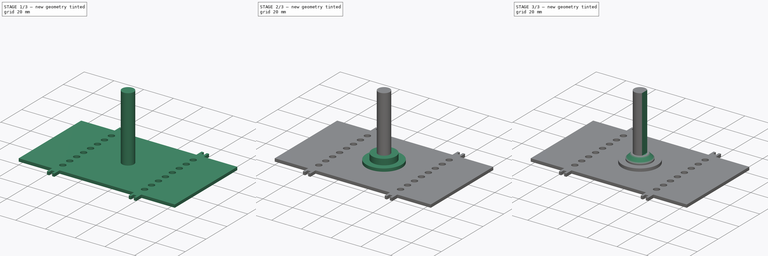
[diagram: build sequence overview — one tinted view per stage of 3, left to right]
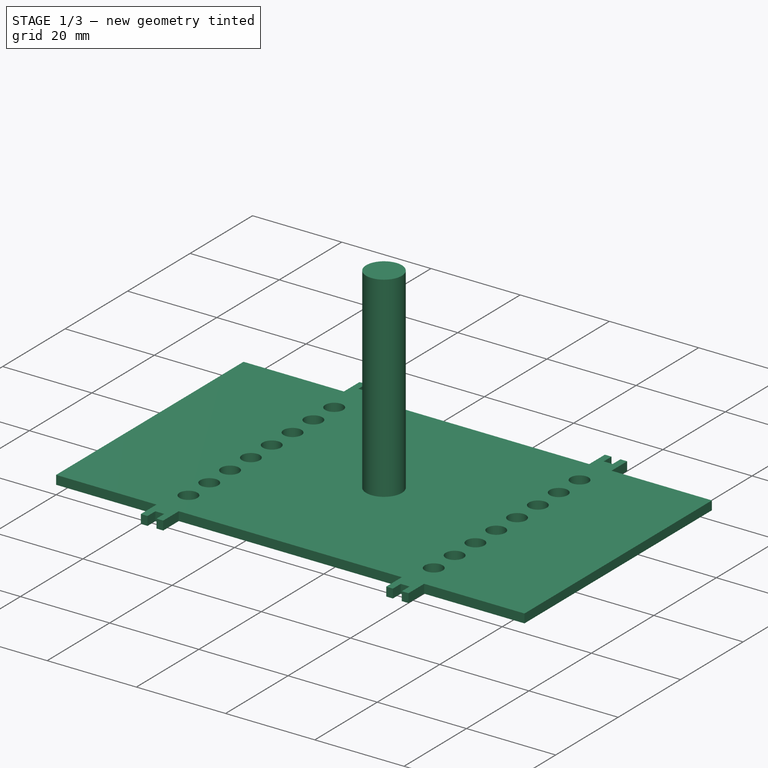
[diagram: stage 1 of 3 — iso view after this stage's code; geometry added in this stage tinted green]
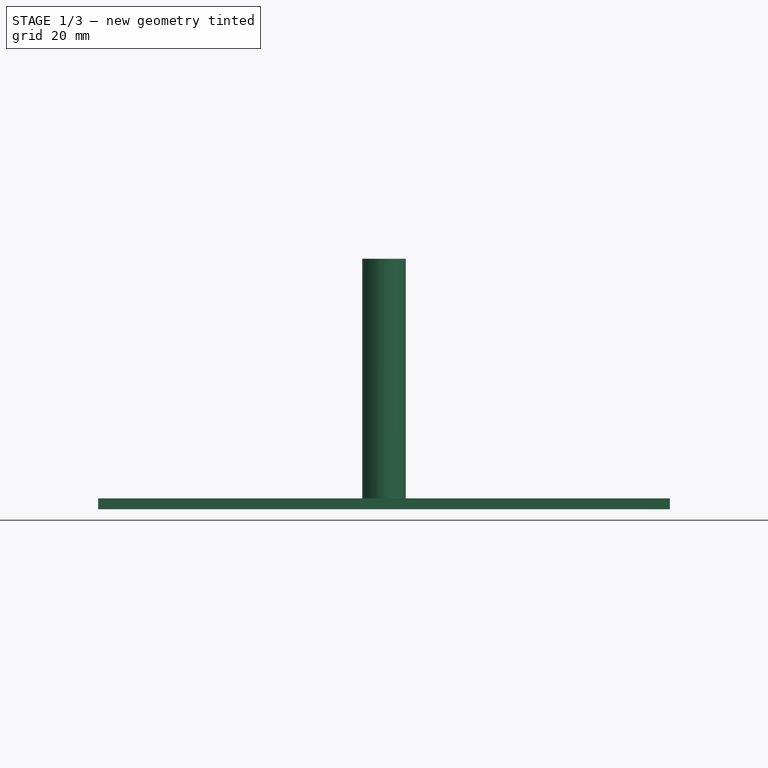
[diagram: stage 1 of 3 — front view after this stage's code; geometry added in this stage tinted green]
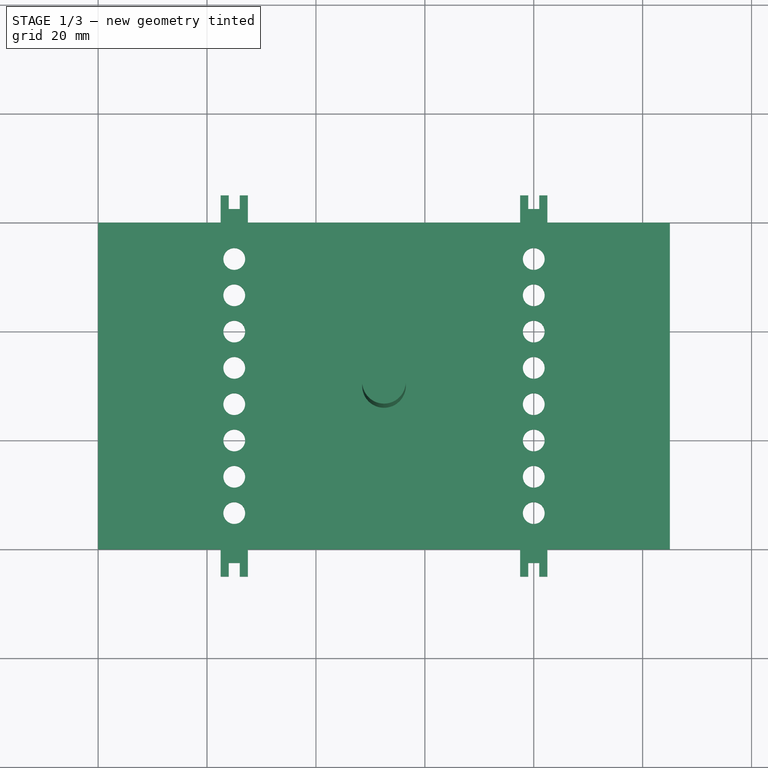
[diagram: stage 1 of 3 — top view after this stage's code; geometry added in this stage tinted green]
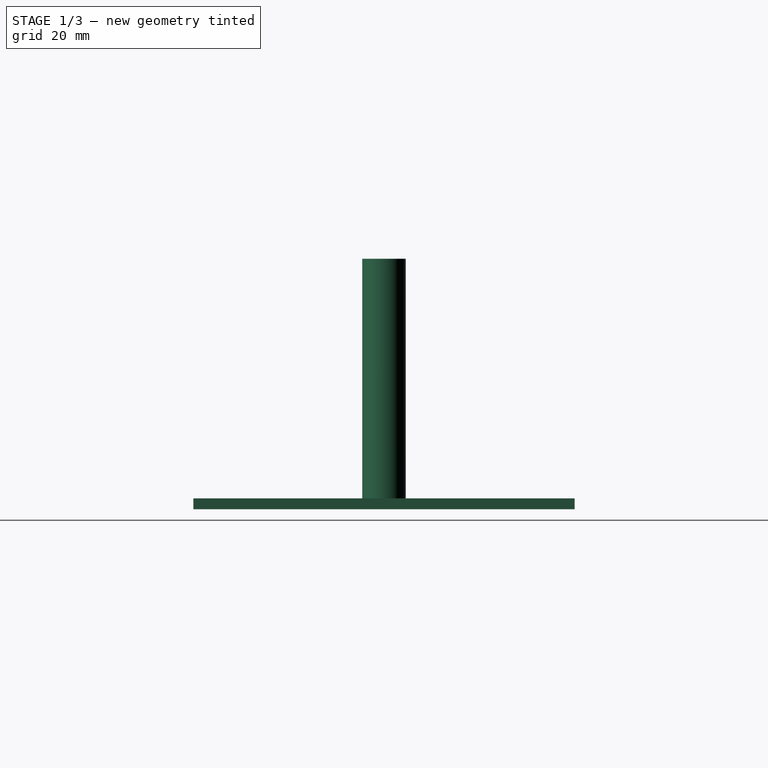
[diagram: stage 1 of 3 — right view after this stage's code; geometry added in this stage tinted green]
FCSTD DOCUMENT  (FreeCAD 0.18R16093 (Git))
Label: tray cover
License: All rights reserved
LicenseURL: http://en.wikipedia.org/wiki/All_rights_reserved
objects: Sketcher::SketchObject×5, PartDesign::Pad×4, PartDesign::Pocket×1, PartDesign::Chamfer×1, PartDesign::Body×1
note: 17 computed .brp shape members not serialized (recipe doc carries the construction recipe); baked Part::Feature solids carry a one-line shape summary decoded from their .brp

FEATURE [Sketcher::SketchObject] Sketch
  MapMode = 5
  Support = -> [XY_Plane]
  sketch-geometry (94):
    g0: LineSegment StartX=105 StartY=0 StartZ=0 EndX=105 EndY=60 EndZ=0
    g1: LineSegment StartX=0 StartY=60 StartZ=0 EndX=0 EndY=0 EndZ=0
    g2: LineSegment StartX=0 StartY=0 StartZ=0 EndX=22.5 EndY=0 EndZ=0
    g3: LineSegment StartX=22.5 StartY=0 StartZ=0 EndX=22.5 EndY=-5 EndZ=0
    g4: LineSegment [constr] StartX=22.5 StartY=-5 StartZ=0 EndX=27.5 EndY=-5 EndZ=0
    g5: LineSegment StartX=27.5 StartY=-5 StartZ=0 EndX=27.5 EndY=0 EndZ=0
    g6: LineSegment StartX=27.5 StartY=0 StartZ=0 EndX=77.5 EndY=0 EndZ=0
    g7: LineSegment StartX=77.5 StartY=0 StartZ=0 EndX=77.5 EndY=-5 EndZ=0
    g8: LineSegment StartX=82.5 StartY=-5 StartZ=0 EndX=82.5 EndY=0 EndZ=0
    g9: LineSegment StartX=82.5 StartY=0 StartZ=0 EndX=105 EndY=0 EndZ=0
    g10: LineSegment StartX=0 StartY=60 StartZ=0 EndX=22.5 EndY=60 EndZ=0
    g11: LineSegment StartX=22.5 StartY=60 StartZ=0 EndX=22.5 EndY=65 EndZ=0
    g12: LineSegment StartX=27.5 StartY=65 StartZ=0 EndX=27.5 EndY=60 EndZ=0
    g13: LineSegment StartX=27.5 StartY=60 StartZ=0 EndX=77.5 EndY=60 EndZ=0
    g14: LineSegment StartX=77.5 StartY=60 StartZ=0 EndX=77.5 EndY=65 EndZ=0
    g15: LineSegment StartX=82.5 StartY=65 StartZ=0 EndX=82.5 EndY=60 EndZ=0
    g16: LineSegment StartX=82.5 StartY=60 StartZ=0 EndX=105 EndY=60 EndZ=0
    g17: LineSegment [constr] StartX=22.5 StartY=60 StartZ=0 EndX=25 EndY=60 EndZ=0
    g18: LineSegment [constr] StartX=25 StartY=60 StartZ=0 EndX=27.5 EndY=60 EndZ=0
    g19: LineSegment [constr] StartX=77.5 StartY=60 StartZ=0 EndX=80 EndY=60 EndZ=0
    g20: LineSegment [constr] StartX=80 StartY=60 StartZ=0 EndX=82.5 EndY=60 EndZ=0
    g21: LineSegment [constr] StartX=22.5 StartY=0 StartZ=0 EndX=25 EndY=0 EndZ=0
    g22: LineSegment [constr] StartX=25 StartY=0 StartZ=0 EndX=27.5 EndY=0 EndZ=0
    g23: LineSegment [constr] StartX=77.5 StartY=0 StartZ=0 EndX=80 EndY=0 EndZ=0
    g24: LineSegment [constr] StartX=80 StartY=0 StartZ=0 EndX=82.5 EndY=0 EndZ=0
    g25: LineSegment [constr] StartX=80 StartY=0 StartZ=0 EndX=80 EndY=-2.5 EndZ=0
    g26: LineSegment [constr] StartX=80 StartY=-2.5 StartZ=0 EndX=80 EndY=-5 EndZ=0
    g27: LineSegment [constr] StartX=25 StartY=0 StartZ=0 EndX=25 EndY=-2.5 EndZ=0
    g28: LineSegment [constr] StartX=25 StartY=-2.5 StartZ=0 EndX=25 EndY=-5 EndZ=0
    g29: LineSegment [constr] StartX=25 StartY=0 StartZ=0 EndX=25 EndY=6.66667 EndZ=0
    g30: LineSegment [constr] StartX=25 StartY=6.66667 StartZ=0 EndX=25 EndY=13.3333 EndZ=0
    g31: LineSegment [constr] StartX=25 StartY=13.3333 StartZ=0 EndX=25 EndY=20 EndZ=0
    g32: LineSegment [constr] StartX=25 StartY=20 StartZ=0 EndX=25 EndY=26.6667 EndZ=0
    g33: LineSegment [constr] StartX=25 StartY=26.6667 StartZ=0 EndX=25 EndY=33.3333 EndZ=0
    g34: LineSegment [constr] StartX=25 StartY=33.3333 StartZ=0 EndX=25 EndY=40 EndZ=0
    g35: LineSegment [constr] StartX=25 StartY=40 StartZ=0 EndX=25 EndY=46.6667 EndZ=0
    g36: Circle CenterX=25 CenterY=46.6667 CenterZ=0 NormalX=0 NormalY=0 NormalZ=1 AngleXU=0 Radius=2
    g37: Circle CenterX=25 CenterY=40 CenterZ=0 NormalX=0 NormalY=0 NormalZ=1 AngleXU=0 Radius=2
    g38: Circle CenterX=25 CenterY=33.3333 CenterZ=0 NormalX=0 NormalY=0 NormalZ=1 AngleXU=0 Radius=2
    g39: Circle CenterX=25 CenterY=26.6667 CenterZ=0 NormalX=0 NormalY=0 NormalZ=1 AngleXU=0 Radius=2
    g40: Circle CenterX=25 CenterY=20 CenterZ=0 NormalX=0 NormalY=0 NormalZ=1 AngleXU=0 Radius=2
    g41: Circle CenterX=25 CenterY=13.3333 CenterZ=0 NormalX=0 NormalY=0 NormalZ=1 AngleXU=0 Radius=2
    g42: Circle CenterX=25 CenterY=6.66667 CenterZ=0 NormalX=0 NormalY=0 NormalZ=1 AngleXU=0 Radius=2
    g43: LineSegment StartX=22.5 StartY=-5 StartZ=0 EndX=24 EndY=-5 EndZ=0
    g44: LineSegment StartX=24 StartY=-5 StartZ=0 EndX=24 EndY=-2.5 EndZ=0
    g45: LineSegment StartX=24 StartY=-2.5 StartZ=0 EndX=25 EndY=-2.5 EndZ=0
    g46: LineSegment StartX=25 StartY=-2.5 StartZ=0 EndX=26 EndY=-2.5 EndZ=0
    g47: LineSegment StartX=26 StartY=-2.5 StartZ=0 EndX=26 EndY=-5 EndZ=0
    g48: LineSegment StartX=26 StartY=-5 StartZ=0 EndX=27.5 EndY=-5 EndZ=0
    g49: LineSegment StartX=77.5 StartY=-5 StartZ=0 EndX=79 EndY=-5 EndZ=0
    g50: LineSegment StartX=79 StartY=-5 StartZ=0 EndX=79 EndY=-2.5 EndZ=0
    g51: LineSegment StartX=79 StartY=-2.5 StartZ=0 EndX=80 EndY=-2.5 EndZ=0
    g52: LineSegment StartX=80 StartY=-2.5 StartZ=0 EndX=81 EndY=-2.5 EndZ=0
    g53: LineSegment StartX=81 StartY=-2.5 StartZ=0 EndX=81 EndY=-5 EndZ=0
    g54: LineSegment StartX=81 StartY=-5 StartZ=0 EndX=82.5 EndY=-5 EndZ=0
    g55: LineSegment [constr] StartX=80 StartY=0 StartZ=0 EndX=80 EndY=6.66667 EndZ=0
    g56: LineSegment [constr] StartX=80 StartY=6.66667 StartZ=0 EndX=80 EndY=13.3333 EndZ=0
    g57: LineSegment [constr] StartX=80 StartY=13.3333 StartZ=0 EndX=80 EndY=20 EndZ=0
    g58: LineSegment [constr] StartX=80 StartY=20 StartZ=0 EndX=80 EndY=26.6667 EndZ=0
    g59: LineSegment [constr] StartX=80 StartY=26.6667 StartZ=0 EndX=80 EndY=33.3333 EndZ=0
    g60: Circle CenterX=80 CenterY=6.66667 CenterZ=0 NormalX=0 NormalY=0 NormalZ=1 AngleXU=0 Radius=2
    g61: Circle CenterX=80 CenterY=13.3333 CenterZ=0 NormalX=0 NormalY=0 NormalZ=1 AngleXU=0 Radius=2
    g62: Circle CenterX=80 CenterY=20 CenterZ=0 NormalX=0 NormalY=0 NormalZ=1 AngleXU=0 Radius=2
    g63: Circle CenterX=80 CenterY=26.6667 CenterZ=0 NormalX=0 NormalY=0 NormalZ=1 AngleXU=0 Radius=2
    g64: Circle CenterX=80 CenterY=33.3333 CenterZ=0 NormalX=0 NormalY=0 NormalZ=1 AngleXU=0 Radius=2
    g65: Circle CenterX=80 CenterY=46.6667 CenterZ=0 NormalX=0 NormalY=0 NormalZ=1 AngleXU=0 Radius=2
    g66: LineSegment [constr] StartX=80 StartY=33.3333 StartZ=0 EndX=80 EndY=40 EndZ=0
    g67: LineSegment [constr] StartX=80 StartY=40 StartZ=0 EndX=80 EndY=46.6667 EndZ=0
    g68: Circle CenterX=80 CenterY=40 CenterZ=0 NormalX=0 NormalY=0 NormalZ=1 AngleXU=0 Radius=2
    g69: LineSegment [constr] StartX=25 StartY=46.6667 StartZ=0 EndX=25 EndY=53.3333 EndZ=0
    g70: LineSegment [constr] StartX=25 StartY=53.3333 StartZ=0 EndX=25 EndY=60 EndZ=0
    g71: LineSegment [constr] StartX=80 StartY=46.6667 StartZ=0 EndX=80 EndY=53.3333 EndZ=0
    g72: LineSegment [constr] StartX=80 StartY=53.3333 StartZ=0 EndX=80 EndY=60 EndZ=0
    g73: Circle CenterX=25 CenterY=53.3333 CenterZ=0 NormalX=0 NormalY=0 NormalZ=1 AngleXU=0 Radius=2
    g74: Circle CenterX=80 CenterY=53.3333 CenterZ=0 NormalX=0 NormalY=0 NormalZ=1 AngleXU=0 Radius=2
    g75: LineSegment [constr] StartX=80 StartY=60 StartZ=0 EndX=80 EndY=62.5 EndZ=0
    g76: LineSegment [constr] StartX=80 StartY=62.5 StartZ=0 EndX=80 EndY=65 EndZ=0
    g77: LineSegment [constr] StartX=77.5 StartY=65 StartZ=0 EndX=82.5 EndY=65 EndZ=0
    g78: LineSegment [constr] StartX=77.5 StartY=-5 StartZ=0 EndX=82.5 EndY=-5 EndZ=0
    g79: LineSegment StartX=77.5 StartY=65 StartZ=0 EndX=79 EndY=65 EndZ=0
    g80: LineSegment StartX=79 StartY=65 StartZ=0 EndX=79 EndY=62.5 EndZ=0
    g81: LineSegment StartX=79 StartY=62.5 StartZ=0 EndX=80 EndY=62.5 EndZ=0
    g82: LineSegment StartX=80 StartY=62.5 StartZ=0 EndX=81 EndY=62.5 EndZ=0
    g83: LineSegment StartX=81 StartY=62.5 StartZ=0 EndX=81 EndY=65 EndZ=0
    g84: LineSegment StartX=81 StartY=65 StartZ=0 EndX=82.5 EndY=65 EndZ=0
    g85: LineSegment StartX=22.5 StartY=65 StartZ=0 EndX=24 EndY=65 EndZ=0
    g86: LineSegment StartX=24 StartY=65 StartZ=0 EndX=24 EndY=62.5 EndZ=0
    g87: LineSegment StartX=24 StartY=62.5 StartZ=0 EndX=25 EndY=62.5 EndZ=0
    g88: LineSegment StartX=25 StartY=62.5 StartZ=0 EndX=26 EndY=62.5 EndZ=0
    g89: LineSegment StartX=26 StartY=62.5 StartZ=0 EndX=26 EndY=65 EndZ=0
    g90: LineSegment StartX=26 StartY=65 StartZ=0 EndX=27.5 EndY=65 EndZ=0
    g91: LineSegment [constr] StartX=25 StartY=60 StartZ=0 EndX=25 EndY=62.5 EndZ=0
    g92: LineSegment [constr] StartX=25 StartY=62.5 StartZ=0 EndX=25 EndY=65 EndZ=0
    g93: LineSegment [constr] StartX=22.5 StartY=65 StartZ=0 EndX=27.5 EndY=65 EndZ=0
  constraints (251):
    c: Vertical(g0)
    c: Vertical(g1)
    c: Coincident(g1,g2)
    c: PointOnObject(g2,g-1)
    c: Coincident(g2,g3)
    c: Vertical(g3)
    c: Coincident(g3,g4)
    c: Horizontal(g4)
    c: Coincident(g4,g5)
    c: PointOnObject(g5,g-1)
    c: Vertical(g5)
    c: Coincident(g5,g6)
    c: PointOnObject(g6,g-1)
    c: Coincident(g6,g7)
    c: Vertical(g7)
    c: PointOnObject(g8,g-1)
    c: Vertical(g8)
    c: Coincident(g8,g9)
    c: Coincident(g9,g0)
    c: Horizontal(g9)
    c: Coincident(g1,g10)
    c: Horizontal(g10)
    c: Coincident(g10,g11)
    c: Vertical(g11)
    c: Vertical(g12)
    c: Coincident(g12,g13)
    c: Horizontal(g13)
    c: Coincident(g13,g14)
    c: Vertical(g14)
    c: Vertical(g15)
    c: Coincident(g15,g16)
    c: Coincident(g16,g0)
    c: Horizontal(g16)
    c: Equal(g14,g11)
    c: Equal(g11,g3)
    c: Equal(g3,g7)
    c: Equal(g13,g6)
    c: Equal(g9,g2)
    c: Equal(g16,g10)
    c: Coincident(g10,g17)
    c: Horizontal(g17)
    c: Coincident(g17,g18)
    c: Coincident(g18,g12)
    c: Horizontal(g18)
    c: Coincident(g13,g19)
    c: Horizontal(g19)
    c: Coincident(g19,g20)
    c: Coincident(g20,g15)
    c: Horizontal(g20)
    c: Coincident(g2,g21)
    c: Horizontal(g21)
    c: Coincident(g21,g22)
    c: Coincident(g22,g5)
    c: Coincident(g6,g23)
    c: PointOnObject(g23,g-1)
    c: Coincident(g23,g24)
    c: Coincident(g24,g8)
    c: Equal(g19,g20)
    c: Equal(g17,g18)
    c: Equal(g21,g22)
    c: Equal(g23,g24)
    c: Coincident(g23,g25)
    c: Vertical(g25)
    c: Coincident(g25,g26)
    c: Vertical(g26)
    c: Coincident(g21,g27)
    c: Vertical(g27)
    c: Coincident(g27,g28)
    c: PointOnObject(g28,g4)
    c: Vertical(g28)
    c: Equal(g27,g28)
    c: Equal(g25,g26)
    c: DistanceX(g1,g0) = 105
    c: Coincident(g1,g-1)
    c: DistanceX(g14,g15) = 5
    c: DistanceY(g15,g15) = 5
    c: DistanceY(g0,g0) = 60
    c: DistanceX(g13,g13) = 50
    c: Coincident(g21,g29)
    c: Vertical(g29)
    c: Coincident(g29,g30)
    c: Vertical(g30)
    c: Coincident(g30,g31)
    c: Vertical(g31)
    c: Coincident(g31,g32)
    c: Vertical(g32)
    c: Coincident(g32,g33)
    c: Vertical(g33)
    c: Coincident(g33,g34)
    c: Vertical(g34)
    c: Coincident(g34,g35)
    c: Vertical(g35)
    c: Equal(g35,g34)
    c: Equal(g34,g33)
    c: Equal(g33,g32)
    c: Equal(g32,g31)
    c: Equal(g31,g30)
    c: Equal(g30,g29)
    c: Coincident(g36,g35)
    c: Coincident(g37,g34)
    c: Coincident(g38,g33)
    c: Coincident(g39,g32)
    c: Coincident(g40,g31)
    c: Coincident(g41,g30)
    c: Coincident(g42,g29)
    c: Equal(g42,g41)
    c: Equal(g41,g40)
    c: Equal(g40,g39)
    c: Equal(g39,g38)
    c: Equal(g38,g37)
    c: Equal(g37,g36)
    c: Radius(g36) = 2
    c: Coincident(g3,g43)
    c: PointOnObject(g43,g4)
    c: Coincident(g43,g44)
    c: Vertical(g44)
    c: Coincident(g44,g45)
    c: Coincident(g45,g27)
    c: Horizontal(g45)
    c: Coincident(g45,g46)
    c: Horizontal(g46)
    c: Coincident(g46,g47)
    c: PointOnObject(g47,g4)
    c: Vertical(g47)
    c: Coincident(g47,g48)
    c: Coincident(g48,g5)
    c: Equal(g45,g46)
    c: Coincident(g7,g49)
    c: Coincident(g49,g50)
    c: Vertical(g50)
    c: Coincident(g50,g51)
    c: Coincident(g51,g25)
    c: Coincident(g51,g52)
    c: Coincident(g52,g53)
    c: Vertical(g53)
    c: Coincident(g53,g54)
    c: Coincident(g54,g8)
    c: Horizontal(g52)
    c: Equal(g49,g48)
    c: Equal(g47,g50)
    c: Equal(g51,g52)
    c: Coincident(g23,g55)
    c: Vertical(g55)
    c: Coincident(g55,g56)
    c: Vertical(g56)
    c: Coincident(g56,g57)
    c: Vertical(g57)
    c: Coincident(g57,g58)
    c: Vertical(g58)
    c: Coincident(g58,g59)
    c: Vertical(g59)
    c: Coincident(g60,g55)
    c: Coincident(g61,g56)
    c: Coincident(g62,g57)
    c: Coincident(g63,g58)
    c: Coincident(g64,g59)
    c: Coincident(g59,g66)
    c: Vertical(g66)
    c: Coincident(g66,g67)
    c: Vertical(g67)
    c: Coincident(g68,g66)
    c: Equal(g58,g57)
    c: Equal(g60,g61)
    c: Equal(g61,g62)
    c: Equal(g62,g63)
    c: Equal(g63,g64)
    c: Equal(g64,g68)
    c: Equal(g68,g65)
    c: Equal(g65,g36)
    c: Equal(g55,g56)
    c: Equal(g56,g57)
    c: Equal(g58,g59)
    c: Equal(g59,g66)
    c: Equal(g66,g67)
    c: Coincident(g69,g36)
    c: Vertical(g69)
    c: Coincident(g69,g70)
    c: Coincident(g70,g17)
    c: Coincident(g71,g65)
    c: Vertical(g71)
    c: Coincident(g71,g72)
    c: Coincident(g72,g19)
    c: Equal(g67,g71)
    c: Equal(g71,g72)
    c: Coincident(g67,g65)
    c: Equal(g69,g35)
    c: Equal(g35,g70)
    c: Coincident(g73,g69)
    c: Coincident(g74,g71)
    c: Equal(g74,g65)
    c: Equal(g73,g36)
    c: Coincident(g19,g75)
    c: Vertical(g75)
    c: Coincident(g75,g76)
    c: Vertical(g76)
    c: Coincident(g77,g14)
    c: Coincident(g77,g15)
    c: PointOnObject(g76,g77)
    c: Equal(g76,g75)
    c: Coincident(g78,g7)
    c: Coincident(g78,g8)
    c: Horizontal(g78)
    c: PointOnObject(g26,g78)
    c: Coincident(g14,g79)
    c: Horizontal(g79)
    c: Coincident(g79,g80)
    c: Vertical(g80)
    c: Coincident(g80,g81)
    c: Horizontal(g81)
    c: Coincident(g81,g82)
    c: Horizontal(g82)
    c: Coincident(g82,g83)
    c: Vertical(g83)
    c: Coincident(g83,g84)
    c: Coincident(g84,g15)
    c: Horizontal(g84)
    c: Coincident(g81,g75)
    c: Equal(g81,g82)
    c: Equal(g79,g48)
    c: Coincident(g11,g85)
    c: Horizontal(g85)
    c: Coincident(g85,g86)
    c: Vertical(g86)
    c: Coincident(g86,g87)
    c: Horizontal(g87)
    c: Coincident(g87,g88)
    c: Horizontal(g88)
    c: Coincident(g88,g89)
    c: Vertical(g89)
    c: Coincident(g89,g90)
    c: Coincident(g90,g12)
    c: Horizontal(g90)
    c: Coincident(g17,g91)
    c: Coincident(g91,g87)
    c: Vertical(g91)
    c: Coincident(g91,g92)
    c: Vertical(g92)
    c: Coincident(g11,g93)
    c: Coincident(g93,g12)
    c: Horizontal(g93)
    c: PointOnObject(g92,g93)
    c: Equal(g92,g91)
    c: Equal(g87,g88)
    c: Equal(g90,g48)
    c: Horizontal(g77)
    c: Horizontal(g49)
    c: Equal(g4,g78)
    c: Equal(g78,g77)
    c: Equal(g77,g93)
    c: DistanceX(g84,g84) = 1.5
    c: Horizontal(g54)
FEATURE [PartDesign::Pad] Pad
  Length = 2
  Length2 = 100
  Profile = -> Sketch
  Type = 0
FEATURE [Sketcher::SketchObject] Sketch001
  MapMode = 5
  Support = -> [XY_Plane]
  expr: Constraints[2] = 60 / 2
  expr: Constraints[1] = 105 / 2
  sketch-geometry (1):
    g0: Circle CenterX=52.5 CenterY=30 CenterZ=0 NormalX=0 NormalY=0 NormalZ=1 AngleXU=0 Radius=4
  constraints (3):
    c: Radius(g0) = 4
    c: DistanceX(g-1,g0) = 52.5
    c: DistanceY(g-1,g0) = 30
FEATURE [PartDesign::Pad] Pad001
  BaseFeature = -> Pad
  Length = 46
  Length2 = 100
  Profile = -> Sketch001
  Type = 0
  expr: Length = 50 - 4
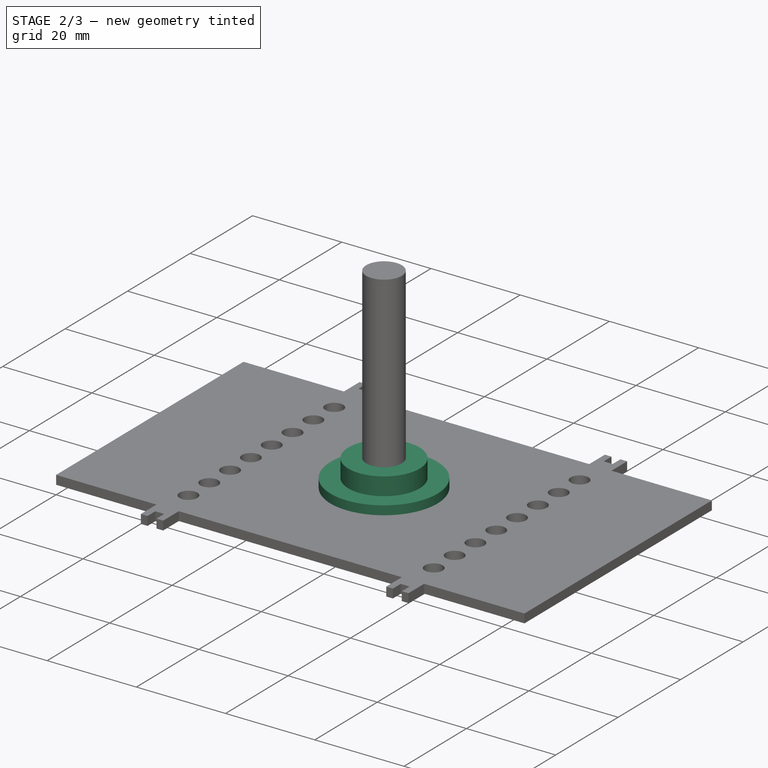
[diagram: stage 2 of 3 — iso view after this stage's code; geometry added in this stage tinted green]
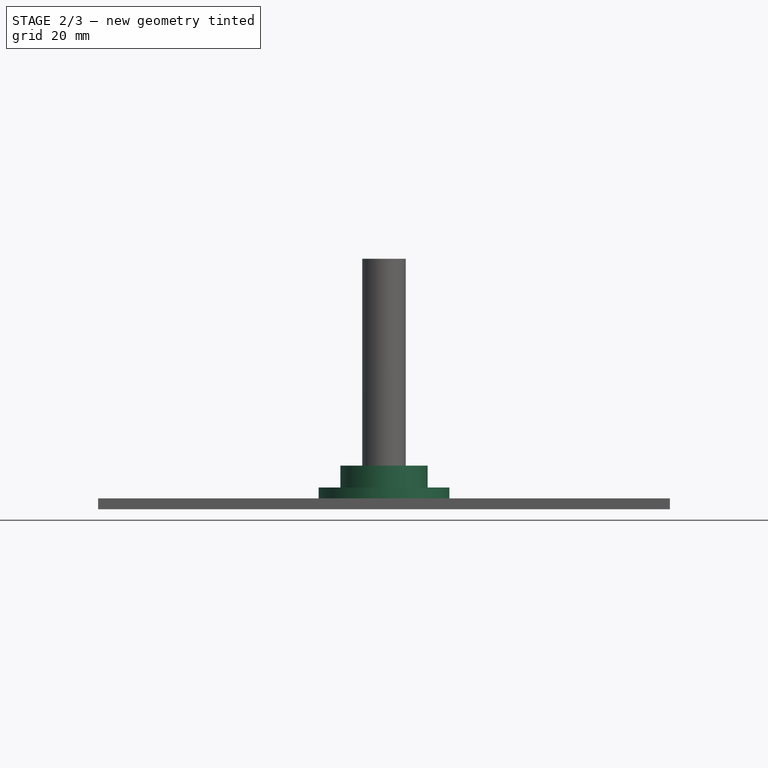
[diagram: stage 2 of 3 — front view after this stage's code; geometry added in this stage tinted green]
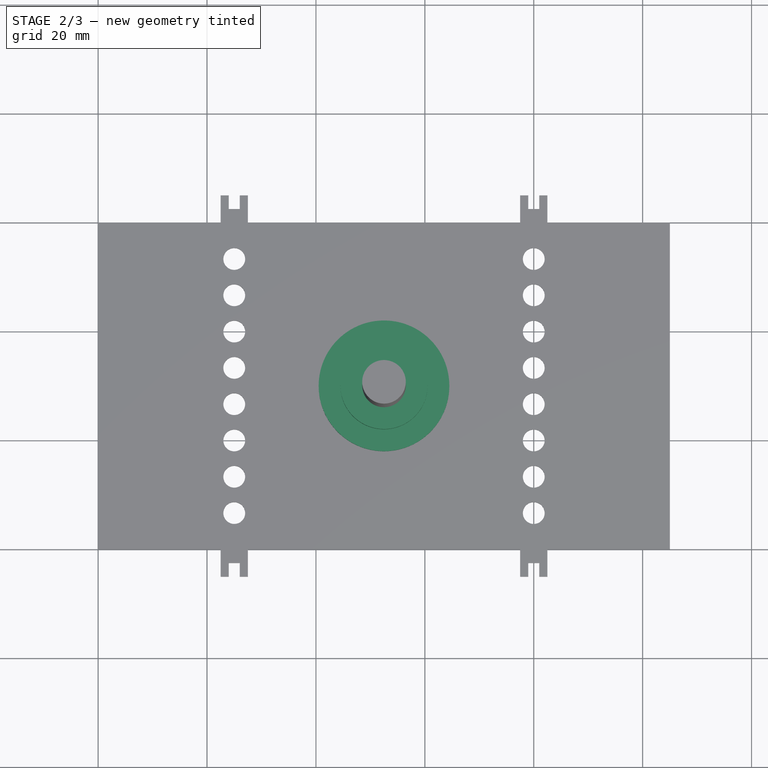
[diagram: stage 2 of 3 — top view after this stage's code; geometry added in this stage tinted green]
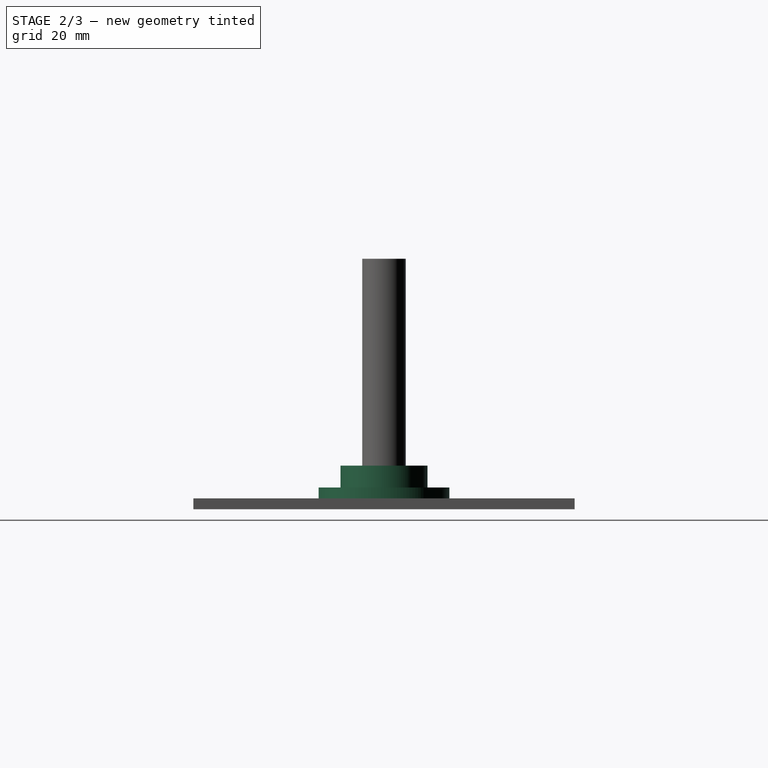
[diagram: stage 2 of 3 — right view after this stage's code; geometry added in this stage tinted green]
FEATURE [Sketcher::SketchObject] Sketch002
  MapMode = 5
  Support = -> [XY_Plane]
  sketch-geometry (1):
    g0: Circle CenterX=52.5 CenterY=30 CenterZ=0 NormalX=0 NormalY=0 NormalZ=1 AngleXU=0 Radius=8
  constraints (3):
    c: Radius(g0) = 8
    c: DistanceX(g-1,g0) = 52.5
    c: DistanceY(g-1,g0) = 30
FEATURE [PartDesign::Pad] Pad002
  BaseFeature = -> Pad001
  Length = 8
  Length2 = 100
  Profile = -> Sketch002
  Type = 0
FEATURE [Sketcher::SketchObject] Sketch003
  MapMode = 5
  Support = -> [XY_Plane]
  sketch-geometry (1):
    g0: Circle CenterX=52.5 CenterY=30 CenterZ=0 NormalX=0 NormalY=0 NormalZ=1 AngleXU=0 Radius=12
  constraints (3):
    c: Radius(g0) = 12
    c: DistanceX(g-1,g0) = 52.5
    c: DistanceY(g-1,g0) = 30
FEATURE [PartDesign::Pad] Pad003
  BaseFeature = -> Pad002
  Length = 4
  Length2 = 100
  Profile = -> Sketch003
  Type = 0
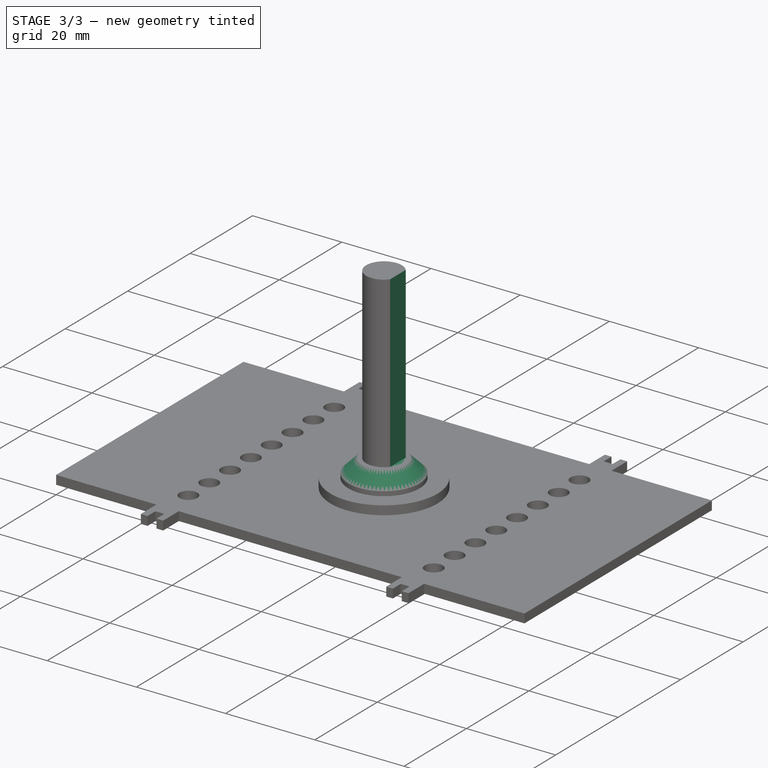
[diagram: stage 3 of 3 — iso view after this stage's code; geometry added in this stage tinted green]
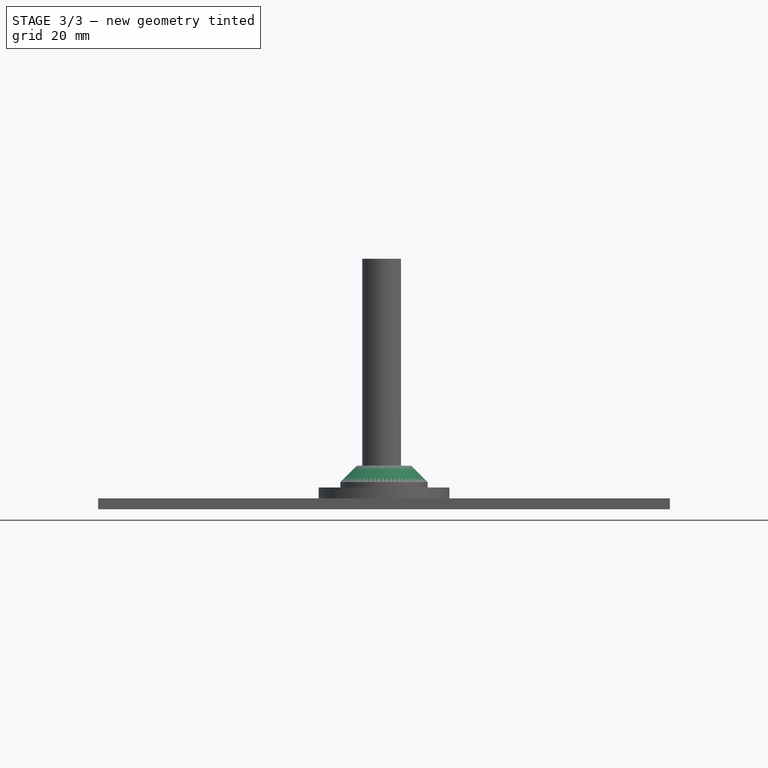
[diagram: stage 3 of 3 — front view after this stage's code; geometry added in this stage tinted green]
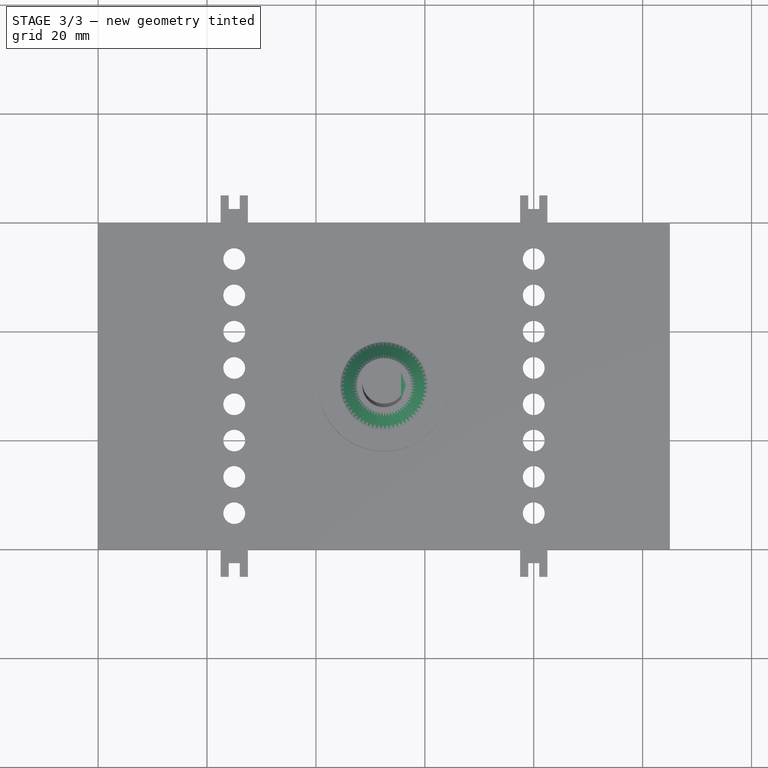
[diagram: stage 3 of 3 — top view after this stage's code; geometry added in this stage tinted green]
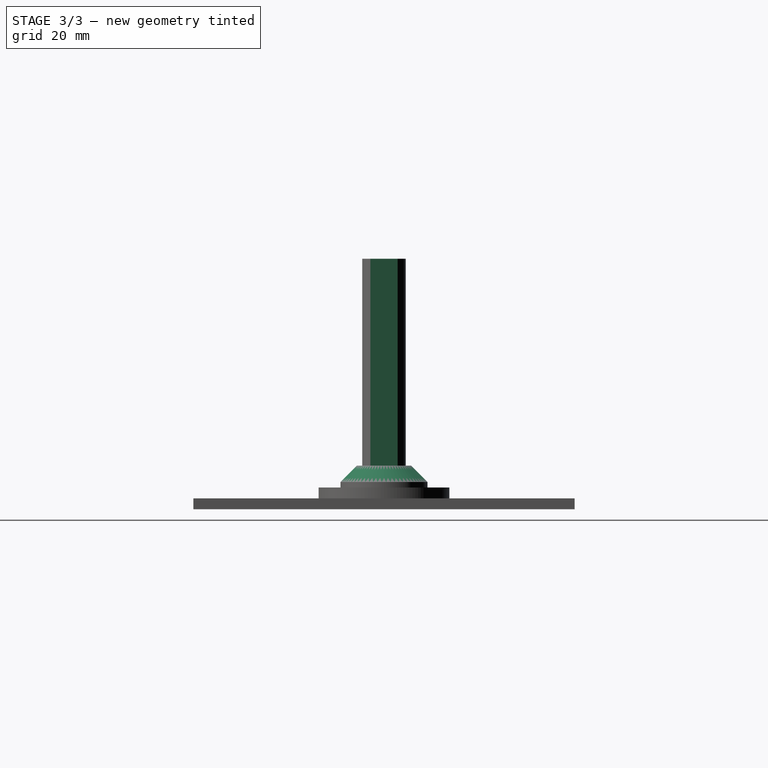
[diagram: stage 3 of 3 — right view after this stage's code; geometry added in this stage tinted green]
FEATURE [Sketcher::SketchObject] Sketch004
  MapMode = 5
  Placement = pos=(0,0,46) rot=(0,0,1;0rad)
  expr: Constraints[6] = 60 / 2
  expr: Constraints[5] = 105 / 2
  sketch-geometry (2):
    g0: LineSegment StartX=55.6225 StartY=32.5 StartZ=0 EndX=55.6225 EndY=27.5 EndZ=0
    g1: ArcOfCircle CenterX=52.5 CenterY=30 CenterZ=0 NormalX=0 NormalY=0 NormalZ=1 AngleXU=0 Radius=4 StartAngle=5.60805 EndAngle=6.95832
  constraints (7):
    c: Vertical(g0)
    c: DistanceY(g0,g0) = 5
    c: Coincident(g1,g0)
    c: Coincident(g1,g0)
    c: Radius(g1) = 4
    c: DistanceX(g-1,g1) = 52.5
    c: DistanceY(g-1,g1) = 30
FEATURE [PartDesign::Pocket] Pocket
  BaseFeature = -> Pad003
  Length = 0
  Length2 = 100
  Profile = -> Sketch004
  Type = 3
  UpToFace = -> Pad003 [Face65]
FEATURE [PartDesign::Chamfer] Chamfer
  Base = -> Pocket [Edge177]
  BaseFeature = -> Pocket
  Size = 3
FEATURE [PartDesign::Body] Body
  Group = -> [Sketch,Pad,Sketch001,Pad001,Sketch002,Pad002,Sketch003,Pad003,Sketch004,Pocket,Chamfer]
  Origin = -> Origin
  Tip = -> Chamfer
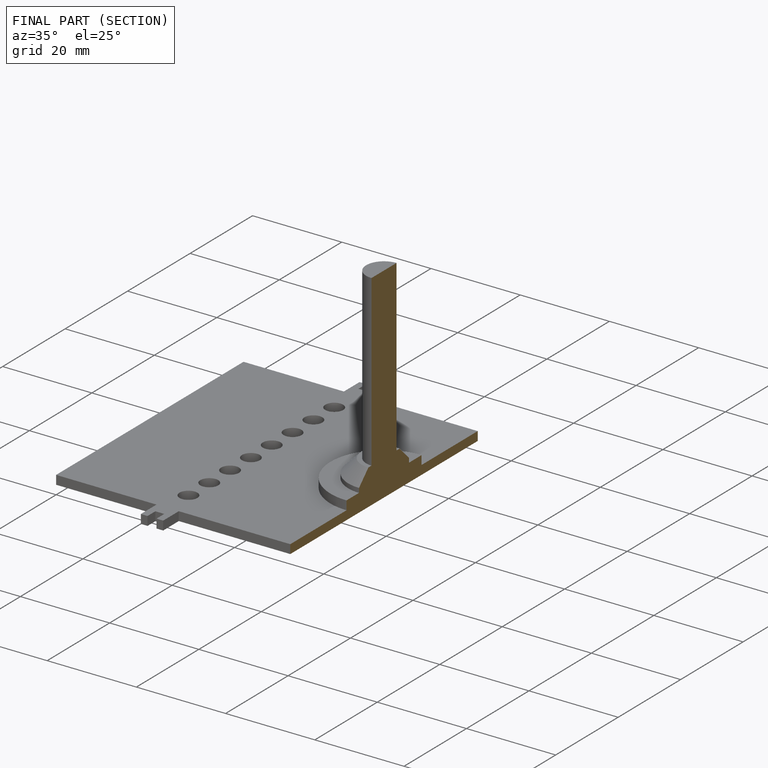
[diagram: finished part — half-section view (interior)]
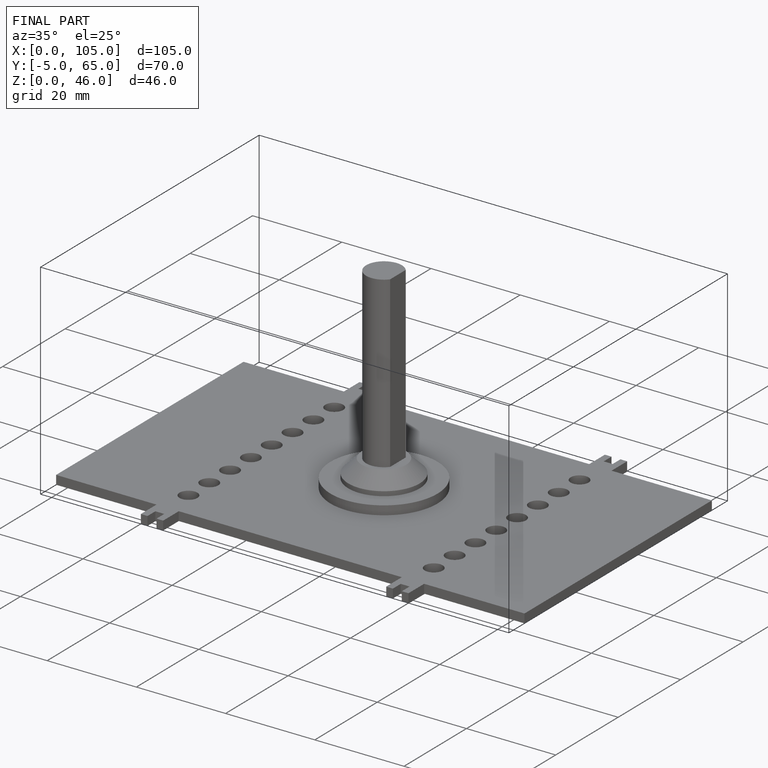
[diagram: finished part — iso view with bounding-box wireframe]
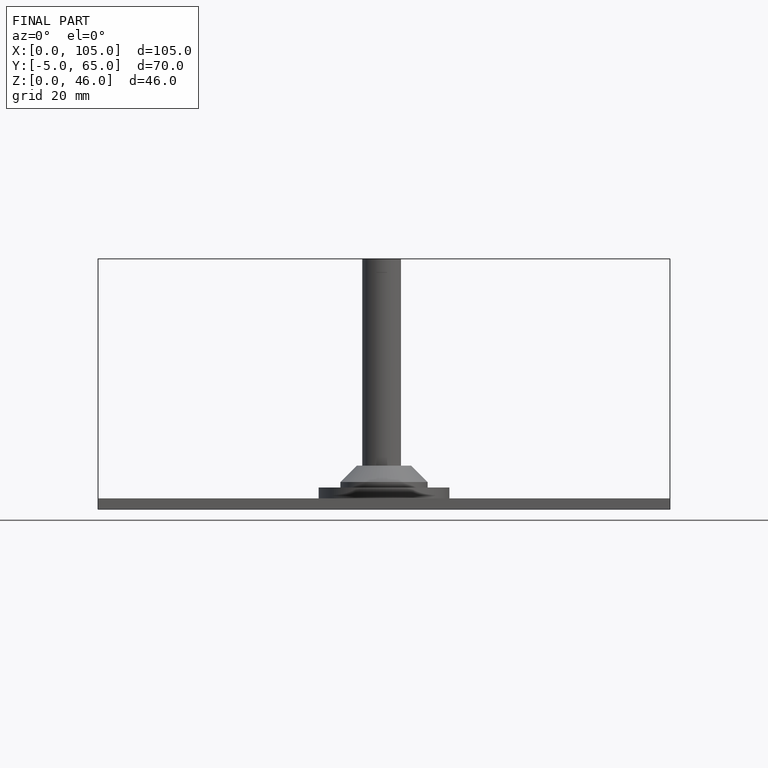
[diagram: finished part — front view with bounding-box wireframe]
